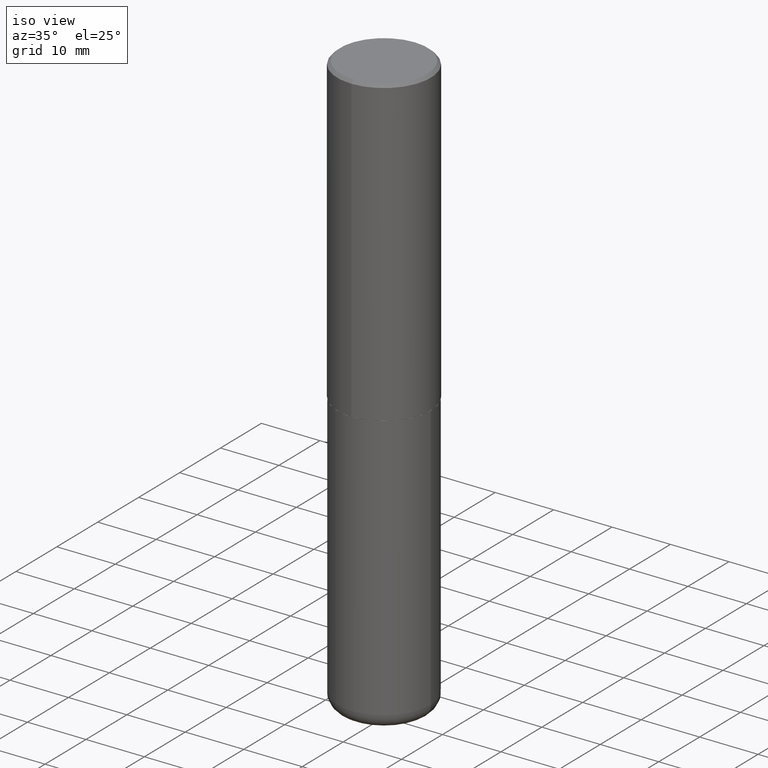
[diagram: clean part render]
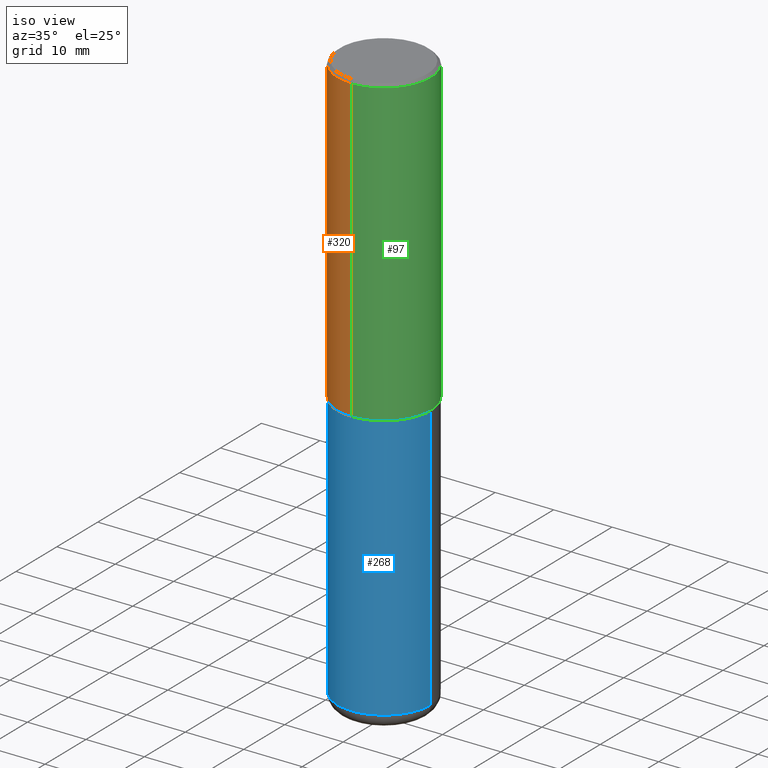
[diagram: same view with three faces highlighted in distinct colors, each labeled with its STEP entity id]
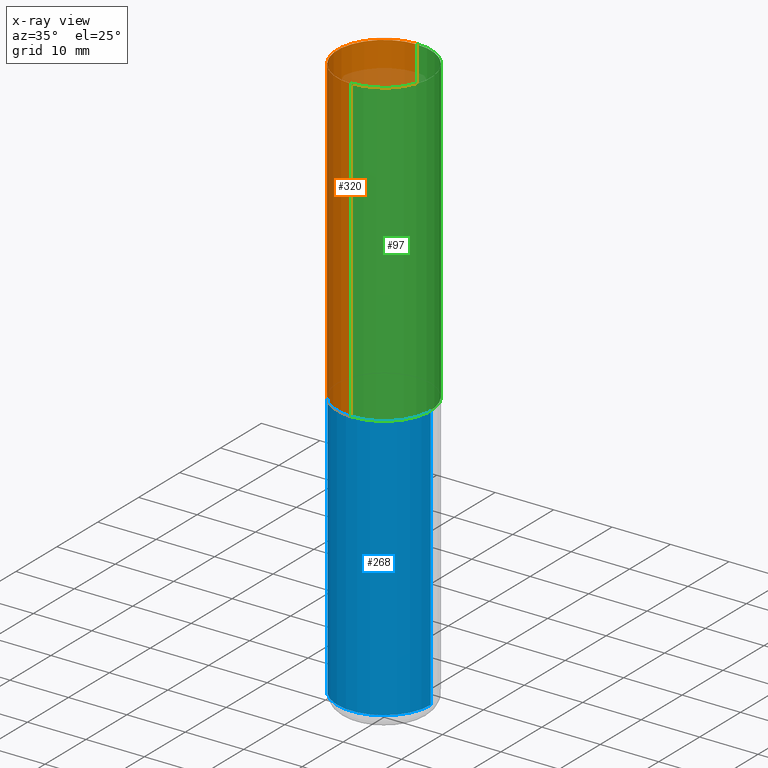
[diagram: x-ray of the same camera — body ghosted, the three highlighted faces saturated]
A machine part, iso view with three faces highlighted in distinct colors.
The next image is the same camera in x-ray (body ghosted, the three faces saturated) — at least one of them is partly hidden behind the body in this view.
Their STEP definitions:

[orange] entity #320 — the highlighted cylindrical surface (partial cylindrical patch) has radius 7.9997 mm, axis along (-0, 0, 1).
#9 = EDGE_CURVE ( 'NONE', #42, #95, #373, .T. ) ;
#14 = CARTESIAN_POINT ( 'NONE',  ( 2.237854346276462412E-15, 0.3149499999999931799, -2.046200000000001129 ) ) ;
#27 = ORIENTED_EDGE ( 'NONE', *, *, #152, .T. ) ;
#30 = DIRECTION ( 'NONE',  ( -6.982962677686264344E-15, -1.000000000000000000, 3.483117034309589160E-15 ) ) ;
#42 = VERTEX_POINT ( 'NONE', #257 ) ;
#57 = EDGE_CURVE ( 'NONE', #227, #222, #252, .T. ) ;
#61 = DIRECTION ( 'NONE',  ( -2.446965979212638438E-29, 3.489337301853966019E-15, 1.000000000000000000 ) ) ;
#77 = LINE ( 'NONE', #178, #98 ) ;
#95 = VERTEX_POINT ( 'NONE', #353 ) ;
#98 = VECTOR ( 'NONE', #206, 39.37007874015748143 ) ;
#127 = DIRECTION ( 'NONE',  ( -6.982962677686265922E-15, -1.000000000000000000, 3.489337301853966019E-15 ) ) ;
#138 = ORIENTED_EDGE ( 'NONE', *, *, #57, .T. ) ;
#149 = EDGE_CURVE ( 'NONE', #227, #42, #359, .T. ) ;
#152 = EDGE_CURVE ( 'NONE', #222, #95, #77, .T. ) ;
#161 = DIRECTION ( 'NONE',  ( -6.982962677686265922E-15, -1.000000000000000000, 3.469564049740289220E-15 ) ) ;
#162 = CARTESIAN_POINT ( 'NONE',  ( 0.000000000000000000, 0.000000000000000000, 0.000000000000000000 ) ) ;
#166 = AXIS2_PLACEMENT_3D ( 'NONE', #346, #185, #30 ) ;
#176 = DIRECTION ( 'NONE',  ( -2.446965979212638158E-29, 3.489337301853966019E-15, 1.000000000000000000 ) ) ;
#178 = CARTESIAN_POINT ( 'NONE',  ( -2.199284095337291449E-15, -0.3149500000000002853, 1.098966783218907654E-15 ) ) ;
#185 = DIRECTION ( 'NONE',  ( -2.446965979212638438E-29, 3.489337301853966019E-15, 1.000000000000000000 ) ) ;
#204 = CARTESIAN_POINT ( 'NONE',  ( 2.237854346276437168E-15, 0.3149500000000002853, -1.098966783218907654E-15 ) ) ;
#206 = DIRECTION ( 'NONE',  ( -2.446965979212638158E-29, 3.489337301853966019E-15, 1.000000000000000000 ) ) ;
#217 = FACE_OUTER_BOUND ( 'NONE', #402, .T. ) ;
#219 = AXIS2_PLACEMENT_3D ( 'NONE', #378, #61, #161 ) ;
#222 = VERTEX_POINT ( 'NONE', #297 ) ;
#227 = VERTEX_POINT ( 'NONE', #14 ) ;
#246 = AXIS2_PLACEMENT_3D ( 'NONE', #162, #317, #127 ) ;
#252 = CIRCLE ( 'NONE', #219, 0.3149500000000003408 ) ;
#257 = CARTESIAN_POINT ( 'NONE',  ( 2.199284095337290660E-15, 0.3149500000000000632, -0.02000000000000116615 ) ) ;
#297 = CARTESIAN_POINT ( 'NONE',  ( -2.199284095337241750E-15, -0.3149500000000075017, -2.046199999999998909 ) ) ;
#317 = DIRECTION ( 'NONE',  ( -2.446965979212638438E-29, 3.489337301853966019E-15, 1.000000000000000000 ) ) ;
#320 = ADVANCED_FACE ( 'NONE', ( #217 ), #350, .T. ) ;
#334 = VECTOR ( 'NONE', #176, 39.37007874015748143 ) ;
#346 = CARTESIAN_POINT ( 'NONE',  ( 4.893931958425293692E-31, -6.978674603707955407E-17, -0.02000000000000006981 ) ) ;
#350 = CYLINDRICAL_SURFACE ( 'NONE', #246, 0.3149500000000002853 ) ;
#353 = CARTESIAN_POINT ( 'NONE',  ( -2.160713844398144151E-15, -0.3149500000000002298, -0.01999999999999896999 ) ) ;
#359 = LINE ( 'NONE', #204, #334 ) ;
#368 = ORIENTED_EDGE ( 'NONE', *, *, #149, .F. ) ;
#373 = CIRCLE ( 'NONE', #166, 0.3149500000000001743 ) ;
#378 = CARTESIAN_POINT ( 'NONE',  ( 5.006981786664901703E-29, -7.139881987053586380E-15, -2.046200000000000241 ) ) ;
#386 = ORIENTED_EDGE ( 'NONE', *, *, #9, .F. ) ;
#402 = EDGE_LOOP ( 'NONE', ( #368, #138, #27, #386 ) ) ;

[blue] entity #268 — the highlighted cylindrical surface (partial cylindrical patch) has radius 7.9997 mm, axis along (-0, 0, 1).
#4 = AXIS2_PLACEMENT_3D ( 'NONE', #179, #240, #337 ) ;
#18 = AXIS2_PLACEMENT_3D ( 'NONE', #160, #116, #409 ) ;
#20 = DIRECTION ( 'NONE',  ( -2.445468806185136877E-29, 3.491481338843145188E-15, 1.000000000000000000 ) ) ;
#40 = DIRECTION ( 'NONE',  ( -2.445468806185136877E-29, 3.491481338843145188E-15, 1.000000000000000000 ) ) ;
#84 = VERTEX_POINT ( 'NONE', #134 ) ;
#88 = VECTOR ( 'NONE', #40, 39.37007874015748143 ) ;
#94 = CARTESIAN_POINT ( 'NONE',  ( 5.006363740022212801E-29, -7.147760596879689780E-15, -2.047200000000000575 ) ) ;
#115 = VERTEX_POINT ( 'NONE', #241 ) ;
#116 = DIRECTION ( 'NONE',  ( -2.445468806185136597E-29, 3.491481338843145583E-15, 1.000000000000000000 ) ) ;
#129 = CARTESIAN_POINT ( 'NONE',  ( -0.3149500000000000077, 2.237854346276435590E-15, -1.549218606675782676E-29 ) ) ;
#134 = CARTESIAN_POINT ( 'NONE',  ( -0.3149500000000000077, -8.037226085805059139E-15, -2.047200000000000575 ) ) ;
#154 = AXIS2_PLACEMENT_3D ( 'NONE', #94, #380, #372 ) ;
#160 = CARTESIAN_POINT ( 'NONE',  ( 0.000000000000000000, 0.000000000000000000, 0.000000000000000000 ) ) ;
#173 = ORIENTED_EDGE ( 'NONE', *, *, #391, .T. ) ;
#179 = CARTESIAN_POINT ( 'NONE',  ( 9.387176559422264284E-29, -1.340240026728329889E-14, -3.838600000000000012 ) ) ;
#189 = CYLINDRICAL_SURFACE ( 'NONE', #18, 0.3149500000000000077 ) ;
#208 = LINE ( 'NONE', #344, #321 ) ;
#233 = LINE ( 'NONE', #129, #88 ) ;
#240 = DIRECTION ( 'NONE',  ( -2.445468806185136597E-29, 3.491481338843145583E-15, 1.000000000000000000 ) ) ;
#241 = CARTESIAN_POINT ( 'NONE',  ( 0.3149499999999999522, -1.560168436262058718E-14, -3.838600000000000012 ) ) ;
#254 = CIRCLE ( 'NONE', #154, 0.3149500000000000077 ) ;
#256 = FACE_OUTER_BOUND ( 'NONE', #333, .T. ) ;
#268 = ADVANCED_FACE ( 'NONE', ( #256 ), #189, .T. ) ;
#277 = VERTEX_POINT ( 'NONE', #389 ) ;
#280 = CIRCLE ( 'NONE', #4, 0.3149500000000000077 ) ;
#281 = EDGE_CURVE ( 'NONE', #277, #84, #233, .T. ) ;
#294 = EDGE_CURVE ( 'NONE', #277, #115, #280, .T. ) ;
#321 = VECTOR ( 'NONE', #20, 39.37007874015748143 ) ;
#333 = EDGE_LOOP ( 'NONE', ( #379, #416, #173, #412 ) ) ;
#337 = DIRECTION ( 'NONE',  ( 1.000000000000000000, -6.982962677686263555E-15, 0.000000000000000000 ) ) ;
#344 = CARTESIAN_POINT ( 'NONE',  ( 0.3149500000000000077, -2.199284095337289871E-15, 1.535751875536930130E-29 ) ) ;
#361 = EDGE_CURVE ( 'NONE', #84, #385, #254, .T. ) ;
#370 = CARTESIAN_POINT ( 'NONE',  ( 0.3149500000000000077, -9.347044692216979650E-15, -2.047200000000000575 ) ) ;
#372 = DIRECTION ( 'NONE',  ( 1.000000000000000000, -6.982962677686266711E-15, 0.000000000000000000 ) ) ;
#379 = ORIENTED_EDGE ( 'NONE', *, *, #281, .F. ) ;
#380 = DIRECTION ( 'NONE',  ( -2.445468806185136597E-29, 3.491481338843145583E-15, 1.000000000000000000 ) ) ;
#385 = VERTEX_POINT ( 'NONE', #370 ) ;
#389 = CARTESIAN_POINT ( 'NONE',  ( -0.3149499999999999522, -1.116454592100686291E-14, -3.838600000000000012 ) ) ;
#391 = EDGE_CURVE ( 'NONE', #115, #385, #208, .T. ) ;
#409 = DIRECTION ( 'NONE',  ( 1.000000000000000000, -6.982962677686266711E-15, 4.876176775795936353E-29 ) ) ;
#412 = ORIENTED_EDGE ( 'NONE', *, *, #361, .F. ) ;
#416 = ORIENTED_EDGE ( 'NONE', *, *, #294, .T. ) ;

[green] entity #97 — the highlighted cylindrical surface (partial cylindrical patch) has radius 7.9997 mm, axis along (-0, 0, 1).
#14 = CARTESIAN_POINT ( 'NONE',  ( 2.237854346276462412E-15, 0.3149499999999931799, -2.046200000000001129 ) ) ;
#36 = AXIS2_PLACEMENT_3D ( 'NONE', #393, #242, #328 ) ;
#39 = ORIENTED_EDGE ( 'NONE', *, *, #410, .T. ) ;
#42 = VERTEX_POINT ( 'NONE', #257 ) ;
#72 = DIRECTION ( 'NONE',  ( -6.982962677686265922E-15, -1.000000000000000000, 3.489337301853966019E-15 ) ) ;
#77 = LINE ( 'NONE', #178, #98 ) ;
#95 = VERTEX_POINT ( 'NONE', #353 ) ;
#97 = ADVANCED_FACE ( 'NONE', ( #358 ), #357, .T. ) ;
#98 = VECTOR ( 'NONE', #206, 39.37007874015748143 ) ;
#101 = ORIENTED_EDGE ( 'NONE', *, *, #220, .F. ) ;
#149 = EDGE_CURVE ( 'NONE', #227, #42, #359, .T. ) ;
#152 = EDGE_CURVE ( 'NONE', #222, #95, #77, .T. ) ;
#168 = ORIENTED_EDGE ( 'NONE', *, *, #149, .T. ) ;
#170 = EDGE_LOOP ( 'NONE', ( #39, #168, #101, #232 ) ) ;
#176 = DIRECTION ( 'NONE',  ( -2.446965979212638158E-29, 3.489337301853966019E-15, 1.000000000000000000 ) ) ;
#178 = CARTESIAN_POINT ( 'NONE',  ( -2.199284095337291449E-15, -0.3149500000000002853, 1.098966783218907654E-15 ) ) ;
#187 = CARTESIAN_POINT ( 'NONE',  ( 5.006981786664901703E-29, -7.139881987053586380E-15, -2.046200000000000241 ) ) ;
#204 = CARTESIAN_POINT ( 'NONE',  ( 2.237854346276437168E-15, 0.3149500000000002853, -1.098966783218907654E-15 ) ) ;
#206 = DIRECTION ( 'NONE',  ( -2.446965979212638158E-29, 3.489337301853966019E-15, 1.000000000000000000 ) ) ;
#220 = EDGE_CURVE ( 'NONE', #95, #42, #325, .T. ) ;
#222 = VERTEX_POINT ( 'NONE', #297 ) ;
#227 = VERTEX_POINT ( 'NONE', #14 ) ;
#232 = ORIENTED_EDGE ( 'NONE', *, *, #152, .F. ) ;
#242 = DIRECTION ( 'NONE',  ( -2.446965979212638438E-29, 3.489337301853966019E-15, 1.000000000000000000 ) ) ;
#257 = CARTESIAN_POINT ( 'NONE',  ( 2.199284095337290660E-15, 0.3149500000000000632, -0.02000000000000116615 ) ) ;
#259 = DIRECTION ( 'NONE',  ( -2.446965979212638438E-29, 3.489337301853966019E-15, 1.000000000000000000 ) ) ;
#297 = CARTESIAN_POINT ( 'NONE',  ( -2.199284095337241750E-15, -0.3149500000000075017, -2.046199999999998909 ) ) ;
#311 = DIRECTION ( 'NONE',  ( -2.446965979212638438E-29, 3.489337301853966019E-15, 1.000000000000000000 ) ) ;
#313 = AXIS2_PLACEMENT_3D ( 'NONE', #354, #259, #72 ) ;
#325 = CIRCLE ( 'NONE', #36, 0.3149500000000001743 ) ;
#328 = DIRECTION ( 'NONE',  ( -6.982962677686264344E-15, -1.000000000000000000, 3.483117034309589160E-15 ) ) ;
#334 = VECTOR ( 'NONE', #176, 39.37007874015748143 ) ;
#353 = CARTESIAN_POINT ( 'NONE',  ( -2.160713844398144151E-15, -0.3149500000000002298, -0.01999999999999896999 ) ) ;
#354 = CARTESIAN_POINT ( 'NONE',  ( 0.000000000000000000, 0.000000000000000000, 0.000000000000000000 ) ) ;
#357 = CYLINDRICAL_SURFACE ( 'NONE', #313, 0.3149500000000002853 ) ;
#358 = FACE_OUTER_BOUND ( 'NONE', #170, .T. ) ;
#359 = LINE ( 'NONE', #204, #334 ) ;
#374 = AXIS2_PLACEMENT_3D ( 'NONE', #187, #311, #406 ) ;
#393 = CARTESIAN_POINT ( 'NONE',  ( 4.893931958425293692E-31, -6.978674603707955407E-17, -0.02000000000000006981 ) ) ;
#406 = DIRECTION ( 'NONE',  ( -6.982962677686265922E-15, -1.000000000000000000, 3.469564049740289220E-15 ) ) ;
#410 = EDGE_CURVE ( 'NONE', #222, #227, #413, .T. ) ;
#413 = CIRCLE ( 'NONE', #374, 0.3149500000000003408 ) ;